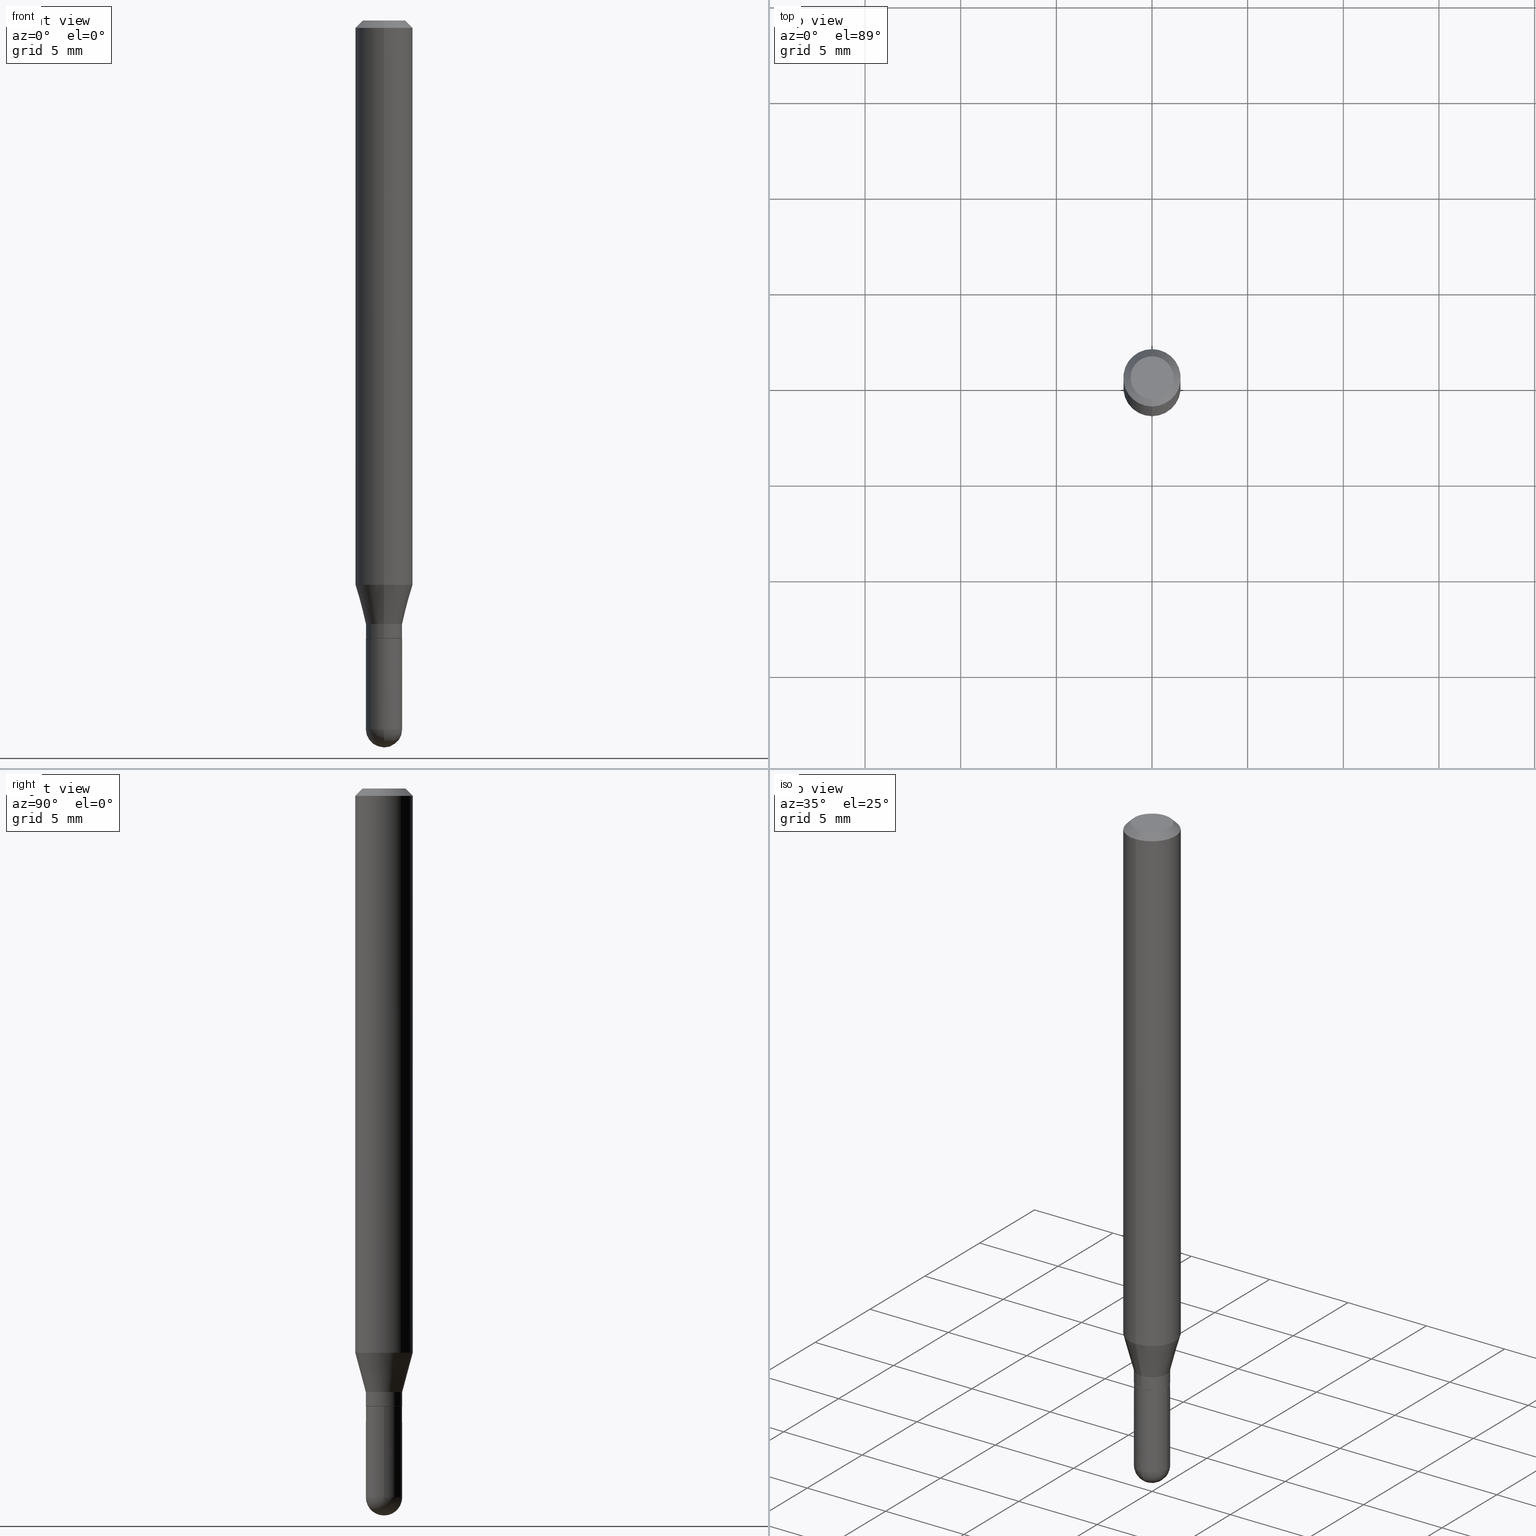
[diagram: canonical four-view strip — front | top / right | iso, engineering-drawing reading convention]
A machine part, canonical four-view strip (front | top / right | iso — engineering-drawing reading convention). The complete STEP part file that produces these views, byte-faithful:
ISO-10303-21;
HEADER;
FILE_DESCRIPTION (( 'STEP AP203' ),
    '1' );
FILE_NAME ('02968.STEP',
    '2024-03-07T22:10:17',
    ( '' ),
    ( '' ),
    'SwSTEP 2.0',
    'SolidWorks 2023',
    '' );
FILE_SCHEMA (( 'CONFIG_CONTROL_DESIGN' ));
ENDSEC;

DATA;
#1 = EDGE_CURVE ( 'NONE', #390, #394, #213, .T. ) ;
#2 = DIRECTION ( 'NONE',  ( -2.445484334717468907E-29, 3.491459101101016620E-15, 1.000000000000000000 ) ) ;
#3 = AXIS2_PLACEMENT_3D ( 'NONE', #228, #262, #376 ) ;
#4 = CIRCLE ( 'NONE', #434, 0.03739999999999999575 ) ;
#5 = EDGE_LOOP ( 'NONE', ( #170, #238, #208, #399 ) ) ;
#6 = CARTESIAN_POINT ( 'NONE',  ( 3.109922428460205583E-29, -4.440088538870162843E-15, -1.271700000000000053 ) ) ;
#7 = ORIENTED_EDGE ( 'NONE', *, *, #264, .F. ) ;
#8 = DIRECTION ( 'NONE',  ( 2.445484334717468627E-29, -3.491459101101016620E-15, -1.000000000000000000 ) ) ;
#9 = CARTESIAN_POINT ( 'NONE',  ( 3.564007025660728008E-29, -5.097604007999306661E-15, -1.458699999999999886 ) ) ;
#10 = DIRECTION ( 'NONE',  ( -6.982962677686265922E-15, -1.000000000000000000, 3.505890868245046092E-15 ) ) ;
#11 = CIRCLE ( 'NONE', #117, 0.03739999999999992636 ) ;
#12 = CARTESIAN_POINT ( 'NONE',  ( 2.839943647979619308E-29, -4.054635294769952393E-15, -1.161301100016133736 ) ) ;
#13 = EDGE_CURVE ( 'NONE', #234, #160, #421, .T. ) ;
#14 = DIRECTION ( 'NONE',  ( 1.000000000000000000, -6.982962677686276177E-15, 0.000000000000000000 ) ) ;
#15 = DIRECTION ( 'NONE',  ( 2.445484334717468907E-29, -3.491459101101016620E-15, -1.000000000000000000 ) ) ;
#16 = CARTESIAN_POINT ( 'NONE',  ( -0.03739999999999999575, 2.657429831742774393E-16, -1.839681723755334690E-30 ) ) ;
#17 = EDGE_CURVE ( 'NONE', #462, #472, #261, .T. ) ;
#18 = CARTESIAN_POINT ( 'NONE',  ( 3.668226502076225554E-31, -5.237188651651557249E-17, -0.01500000000000009139 ) ) ;
#19 = DIRECTION ( 'NONE',  ( -2.445468806185136597E-29, 3.491481338843145583E-15, 1.000000000000000000 ) ) ;
#20 = EDGE_CURVE ( 'NONE', #91, #472, #354, .T. ) ;
#21 = DIRECTION ( 'NONE',  ( -2.445484334717468627E-29, 3.491459101101016620E-15, 1.000000000000000000 ) ) ;
#22 = CONICAL_SURFACE ( 'NONE', #149, 0.03739999999999992636, 0.2617993877991502405 ) ;
#23 = CARTESIAN_POINT ( 'NONE',  ( 3.426592343203375307E-16, 0.03739999999999558955, -1.242099999999999760 ) ) ;
#24 = COORDINATED_UNIVERSAL_TIME_OFFSET ( 5, 0, .BEHIND. ) ;
#25 = ADVANCED_FACE ( 'NONE', ( #438 ), #335, .T. ) ;
#26 = DIRECTION ( 'NONE',  ( -1.000000000000000000, 6.982962677686265922E-15, -4.883557194083112340E-29 ) ) ;
#27 = ORIENTED_EDGE ( 'NONE', *, *, #304, .F. ) ;
#28 = DESIGN_CONTEXT ( 'detailed design', #395, 'design' ) ;
#29 = CYLINDRICAL_SURFACE ( 'NONE', #474, 0.03739999999999992636 ) ;
#30 = ORIENTED_EDGE ( 'NONE', *, *, #505, .T. ) ;
#31 = PERSON_AND_ORGANIZATION ( #251, #143 ) ;
#32 = VECTOR ( 'NONE', #2, 39.37007874015748143 ) ;
#33 = DIRECTION ( 'NONE',  ( -2.445468806185136597E-29, 3.491481338843145583E-15, 1.000000000000000000 ) ) ;
#34 = EDGE_LOOP ( 'NONE', ( #44, #241, #163, #467 ) ) ;
#35 = VECTOR ( 'NONE', #363, 39.37007874015748143 ) ;
#36 = SHAPE_DEFINITION_REPRESENTATION ( #282, #468 ) ;
#37 = ORIENTED_EDGE ( 'NONE', *, *, #20, .T. ) ;
#38 =( NAMED_UNIT ( * ) SI_UNIT ( $, .STERADIAN. ) SOLID_ANGLE_UNIT ( ) );
#39 = PRODUCT_DEFINITION ( 'UNKNOWN', '', #206, #28 ) ;
#40 = FACE_OUTER_BOUND ( 'NONE', #88, .T. ) ;
#41 = ORIENTED_EDGE ( 'NONE', *, *, #109, .T. ) ;
#42 = MANIFOLD_SOLID_BREP ( 'Body-Move/Copy2[2]', #92 ) ;
#43 = DIRECTION ( 'NONE',  ( -6.982962677686265133E-15, -1.000000000000000000, 0.000000000000000000 ) ) ;
#44 = ORIENTED_EDGE ( 'NONE', *, *, #173, .F. ) ;
#45 = AXIS2_PLACEMENT_3D ( 'NONE', #229, #19, #108 ) ;
#46 = EDGE_CURVE ( 'NONE', #339, #462, #378, .T. ) ;
#47 = AXIS2_PLACEMENT_3D ( 'NONE', #327, #141, #331 ) ;
#48 = FACE_OUTER_BOUND ( 'NONE', #347, .T. ) ;
#49 = ORIENTED_EDGE ( 'NONE', *, *, #58, .T. ) ;
#50 = DIRECTION ( 'NONE',  ( -2.445484334717468907E-29, 3.491459101101016620E-15, 1.000000000000000000 ) ) ;
#51 = DIRECTION ( 'NONE',  ( 7.105427357601001859E-15, 1.000000000000000000, 0.000000000000000000 ) ) ;
#52 = ORIENTED_EDGE ( 'NONE', *, *, #220, .F. ) ;
#53 = LOCAL_TIME ( 17, 10, 17.00000000000000000, #239 ) ;
#54 = CARTESIAN_POINT ( 'NONE',  ( -2.611628041454307043E-16, -0.03740000000000509583, -1.458699999999999886 ) ) ;
#55 = DIRECTION ( 'NONE',  ( -2.445484334717468907E-29, 3.491459101101016620E-15, 1.000000000000000000 ) ) ;
#56 = CONICAL_SURFACE ( 'NONE', #340, 0.05904999999999999832, 0.7853981633974483900 ) ;
#57 = CARTESIAN_POINT ( 'NONE',  ( 2.241672595606278768E-45, -3.200473654443799496E-31, -9.166579248872037308E-17 ) ) ;
#58 = EDGE_CURVE ( 'NONE', #274, #344, #348, .T. ) ;
#59 = CIRCLE ( 'NONE', #448, 0.05904999999999999832 ) ;
#60 = LINE ( 'NONE', #361, #368 ) ;
#61 = CC_DESIGN_PERSON_AND_ORGANIZATION_ASSIGNMENT ( #31, #430, ( #320 ) ) ;
#62 = FACE_OUTER_BOUND ( 'NONE', #246, .T. ) ;
#63 = FACE_OUTER_BOUND ( 'NONE', #256, .T. ) ;
#64 = AXIS2_PLACEMENT_3D ( 'NONE', #401, #55, #357 ) ;
#65 = FACE_OUTER_BOUND ( 'NONE', #34, .T. ) ;
#66 = AXIS2_PLACEMENT_3D ( 'NONE', #407, #260, #150 ) ;
#67 = AXIS2_PLACEMENT_3D ( 'NONE', #57, #50, #218 ) ;
#68 = DIRECTION ( 'NONE',  ( 6.982962677686265922E-15, 1.000000000000000000, -3.505890868245046092E-15 ) ) ;
#69 = CARTESIAN_POINT ( 'NONE',  ( 3.037536092152567854E-29, -4.336741349477572225E-15, -1.242099999999999760 ) ) ;
#70 = EDGE_CURVE ( 'NONE', #394, #510, #138, .T. ) ;
#71 = AXIS2_PLACEMENT_3D ( 'NONE', #316, #133, #285 ) ;
#72 = FACE_OUTER_BOUND ( 'NONE', #122, .T. ) ;
#73 = EDGE_CURVE ( 'NONE', #175, #281, #187, .T. ) ;
#74 = AXIS2_PLACEMENT_3D ( 'NONE', #382, #33, #203 ) ;
#75 = CARTESIAN_POINT ( 'NONE',  ( -3.536586717851222218E-16, -0.04404999999999999888, 6.213298091477938012E-17 ) ) ;
#76 = ORIENTED_EDGE ( 'NONE', *, *, #151, .F. ) ;
#77 = CYLINDRICAL_SURFACE ( 'NONE', #280, 0.03739999999999992636 ) ;
#78 = CARTESIAN_POINT ( 'NONE',  ( 2.621902694955080459E-16, 0.03689999999999556135, -1.271700000000000053 ) ) ;
#79 = ORIENTED_EDGE ( 'NONE', *, *, #351, .F. ) ;
#80 = PERSON_AND_ORGANIZATION ( #251, #143 ) ;
#81 = APPROVAL_STATUS ( 'not_yet_approved' ) ;
#82 = CARTESIAN_POINT ( 'NONE',  ( 0.000000000000000000, 0.000000000000000000, 0.000000000000000000 ) ) ;
#83 = ORIENTED_EDGE ( 'NONE', *, *, #13, .F. ) ;
#84 = PERSON_AND_ORGANIZATION ( #251, #143 ) ;
#85 = EDGE_LOOP ( 'NONE', ( #420, #224, #204, #27, #242 ) ) ;
#86 = APPROVAL_DATE_TIME ( #307, #391 ) ;
#87 = CARTESIAN_POINT ( 'NONE',  ( 3.109922428460205583E-29, -4.440088538870162843E-15, -1.271700000000000053 ) ) ;
#88 = EDGE_LOOP ( 'NONE', ( #362, #397, #369, #476 ) ) ;
#89 = APPLICATION_PROTOCOL_DEFINITION ( 'international standard', 'config_control_design', 1994, #439 ) ;
#90 = CARTESIAN_POINT ( 'NONE',  ( 2.657429831742768970E-16, 0.03739999999999992636, -1.305805703811777518E-16 ) ) ;
#91 = VERTEX_POINT ( 'NONE', #450 ) ;
#92 = CLOSED_SHELL ( 'NONE', ( #411, #263, #110, #244, #300, #319, #485, #157, #460, #205, #336, #250 ) ) ;
#93 = CARTESIAN_POINT ( 'NONE',  ( 0.000000000000000000, 0.000000000000000000, 0.000000000000000000 ) ) ;
#94 = DIRECTION ( 'NONE',  ( -2.445468806185136877E-29, 3.491481338843145188E-15, 1.000000000000000000 ) ) ;
#95 = DIRECTION ( 'NONE',  ( -2.445484334717468907E-29, 3.491459101101016620E-15, 1.000000000000000000 ) ) ;
#96 = CONICAL_SURFACE ( 'NONE', #132, 0.03690000000000000224, 0.7853981633974739252 ) ;
#97 = LINE ( 'NONE', #291, #35 ) ;
#98 = DIRECTION ( 'NONE',  ( -2.445484334717468907E-29, 3.491459101101016620E-15, 1.000000000000000000 ) ) ;
#99 = APPROVAL_PERSON_ORGANIZATION ( #84, #477, #393 ) ;
#100 = LINE ( 'NONE', #253, #297 ) ;
#101 = FACE_OUTER_BOUND ( 'NONE', #247, .T. ) ;
#102 = AXIS2_PLACEMENT_3D ( 'NONE', #481, #95, #10 ) ;
#103 = EDGE_LOOP ( 'NONE', ( #128, #383, #386, #479 ) ) ;
#104 = LENGTH_MEASURE_WITH_UNIT ( LENGTH_MEASURE( 0.02539999999999999897 ), #146 );
#105 = CARTESIAN_POINT ( 'NONE',  ( 3.668226502076225554E-31, -5.237188651651557249E-17, -0.01500000000000009139 ) ) ;
#106 = ADVANCED_FACE ( 'NONE', ( #63 ), #493, .F. ) ;
#107 =( NAMED_UNIT ( * ) PLANE_ANGLE_UNIT ( ) SI_UNIT ( $, .RADIAN. ) );
#108 = DIRECTION ( 'NONE',  ( 1.000000000000000000, -6.982962677686276177E-15, 0.000000000000000000 ) ) ;
#109 = EDGE_CURVE ( 'NONE', #428, #390, #11, .T. ) ;
#110 = ADVANCED_FACE ( 'NONE', ( #296 ), #56, .T. ) ;
#111 = LINE ( 'NONE', #190, #279 ) ;
#112 = EDGE_CURVE ( 'NONE', #160, #175, #492, .T. ) ;
#113 = VECTOR ( 'NONE', #500, 39.37007874015748143 ) ;
#114 = DIRECTION ( 'NONE',  ( -4.851104656540964275E-15, -0.7071067811865500152, -0.7071067811865450192 ) ) ;
#115 = DIRECTION ( 'NONE',  ( -2.445484334717468907E-29, 3.491459101101016620E-15, 1.000000000000000000 ) ) ;
#116 = ORIENTED_EDGE ( 'NONE', *, *, #326, .F. ) ;
#117 = AXIS2_PLACEMENT_3D ( 'NONE', #341, #303, #337 ) ;
#118 = DIRECTION ( 'NONE',  ( -2.445484334717468907E-29, 3.491459101101016620E-15, 1.000000000000000000 ) ) ;
#119 = ORIENTED_EDGE ( 'NONE', *, *, #326, .T. ) ;
#120 = PERSON_AND_ORGANIZATION_ROLE ( 'design_owner' ) ;
#121 = CYLINDRICAL_SURFACE ( 'NONE', #405, 0.05904999999999999832 ) ;
#122 = EDGE_LOOP ( 'NONE', ( #186, #79 ) ) ;
#123 = DATE_AND_TIME ( #202, #53 ) ;
#124 = DIRECTION ( 'NONE',  ( -6.982962677686265133E-15, -1.000000000000000000, 0.000000000000000000 ) ) ;
#125 = ORIENTED_EDGE ( 'NONE', *, *, #70, .F. ) ;
#126 = DATE_AND_TIME ( #345, #276 ) ;
#127 = VECTOR ( 'NONE', #416, 39.37007874015748143 ) ;
#128 = ORIENTED_EDGE ( 'NONE', *, *, #370, .F. ) ;
#129 = AXIS2_PLACEMENT_3D ( 'NONE', #359, #8, #257 ) ;
#130 = CARTESIAN_POINT ( 'NONE',  ( 3.564007025660728008E-29, -5.097604007999306661E-15, -1.458699999999999886 ) ) ;
#131 = ORIENTED_EDGE ( 'NONE', *, *, #1, .F. ) ;
#132 = AXIS2_PLACEMENT_3D ( 'NONE', #87, #118, #124 ) ;
#133 = DIRECTION ( 'NONE',  ( 0.000000000000000000, 0.000000000000000000, 1.000000000000000000 ) ) ;
#134 = FACE_OUTER_BOUND ( 'NONE', #85, .T. ) ;
#135 = DIRECTION ( 'NONE',  ( -6.982962677686265133E-15, -1.000000000000000000, 0.000000000000000000 ) ) ;
#136 = ORIENTED_EDGE ( 'NONE', *, *, #442, .T. ) ;
#137 = DIRECTION ( 'NONE',  ( -2.445468806185136597E-29, 3.491481338843145583E-15, 1.000000000000000000 ) ) ;
#138 = CIRCLE ( 'NONE', #373, 0.03739999999999992636 ) ;
#139 = CALENDAR_DATE ( 2024, 7, 3 ) ;
#140 = DIRECTION ( 'NONE',  ( -2.445484334717468907E-29, 3.491459101101016620E-15, 1.000000000000000000 ) ) ;
#141 = DIRECTION ( 'NONE',  ( -2.445484334717468907E-29, 3.491459101101016620E-15, 1.000000000000000000 ) ) ;
#142 = CARTESIAN_POINT ( 'NONE',  ( 2.657429831743070709E-16, 0.03739999999999536057, -1.271200000000000108 ) ) ;
#143 = ORGANIZATION ( 'UNSPECIFIED', 'UNSPECIFIED', '' ) ;
#144 = DIRECTION ( 'NONE',  ( -6.982962677686265922E-15, -1.000000000000000000, 4.626330217890369336E-15 ) ) ;
#145 = PERSON_AND_ORGANIZATION ( #251, #143 ) ;
#146 =( LENGTH_UNIT ( ) NAMED_UNIT ( * ) SI_UNIT ( $, .METRE. ) );
#147 = CARTESIAN_POINT ( 'NONE',  ( 4.195754854663390985E-16, 0.05904999999999999832, -2.061706599200150360E-16 ) ) ;
#148 = EDGE_CURVE ( 'NONE', #510, #394, #302, .T. ) ;
#149 = AXIS2_PLACEMENT_3D ( 'NONE', #437, #365, #475 ) ;
#150 = DIRECTION ( 'NONE',  ( 1.000000000000000000, -6.982962677686266711E-15, 4.876176775795936353E-29 ) ) ;
#151 = EDGE_CURVE ( 'NONE', #472, #462, #433, .T. ) ;
#152 = DIMENSIONAL_EXPONENTS ( 1.000000000000000000, 0.000000000000000000, 0.000000000000000000, 0.000000000000000000, 0.000000000000000000, 0.000000000000000000, 0.000000000000000000 ) ;
#153 = CARTESIAN_POINT ( 'NONE',  ( 2.657429831743130367E-16, 0.03739999999999490260, -1.458699999999999886 ) ) ;
#154 = DIRECTION ( 'NONE',  ( -6.982962677686265133E-15, -1.000000000000000000, 3.491459101101016226E-15 ) ) ;
#155 = CIRCLE ( 'NONE', #217, 0.03740000000000000269 ) ;
#156 = ORIENTED_EDGE ( 'NONE', *, *, #286, .T. ) ;
#157 = ADVANCED_FACE ( 'NONE', ( #65 ), #322, .T. ) ;
#158 = SPHERICAL_SURFACE ( 'NONE', #3, 0.03739999999999999575 ) ;
#159 = CARTESIAN_POINT ( 'NONE',  ( 3.567205347582258439E-29, -5.093023828970496460E-15, -1.458699999999999886 ) ) ;
#160 = VERTEX_POINT ( 'NONE', #153 ) ;
#161 = CC_DESIGN_PERSON_AND_ORGANIZATION_ASSIGNMENT ( #162, #423, ( #206 ) ) ;
#162 = PERSON_AND_ORGANIZATION ( #251, #143 ) ;
#163 = ORIENTED_EDGE ( 'NONE', *, *, #482, .T. ) ;
#164 = FACE_OUTER_BOUND ( 'NONE', #5, .T. ) ;
#165 = EDGE_LOOP ( 'NONE', ( #116, #471, #290, #172 ) ) ;
#166 = EDGE_CURVE ( 'NONE', #236, #281, #155, .T. ) ;
#167 = ORIENTED_EDGE ( 'NONE', *, *, #46, .T. ) ;
#168 = APPROVAL_DATE_TIME ( #126, #477 ) ;
#169 = ADVANCED_FACE ( 'NONE', ( #452 ), #158, .T. ) ;
#170 = ORIENTED_EDGE ( 'NONE', *, *, #148, .T. ) ;
#171 = VECTOR ( 'NONE', #412, 39.37007874015748143 ) ;
#172 = ORIENTED_EDGE ( 'NONE', *, *, #112, .F. ) ;
#173 = EDGE_CURVE ( 'NONE', #274, #472, #111, .T. ) ;
#174 = CONICAL_SURFACE ( 'NONE', #366, 0.03690000000000000224, 0.7853981633974739252 ) ;
#175 = VERTEX_POINT ( 'NONE', #192 ) ;
#176 = CARTESIAN_POINT ( 'NONE',  ( 3.653868398051286742E-29, -5.230475499586446539E-15, -1.496099999999999985 ) ) ;
#177 = DIRECTION ( 'NONE',  ( -2.445484334717468907E-29, 3.491459101101016620E-15, 1.000000000000000000 ) ) ;
#178 = CC_DESIGN_APPROVAL ( #477, ( #320 ) ) ;
#179 = CARTESIAN_POINT ( 'NONE',  ( 2.639666263349080021E-16, 0.03689999999999556135, -1.271700000000000053 ) ) ;
#180 = AXIS2_PLACEMENT_3D ( 'NONE', #315, #137, #321 ) ;
#181 = DIRECTION ( 'NONE',  ( -2.445484334717468907E-29, 3.491459101101016620E-15, 1.000000000000000000 ) ) ;
#182 = PRODUCT_RELATED_PRODUCT_CATEGORY ( 'detail', '', ( #417 ) ) ;
#183 = CARTESIAN_POINT ( 'NONE',  ( 3.599717260347271507E-16, 0.04404999999999999888, -2.454645658922201386E-16 ) ) ;
#184 = DIRECTION ( 'NONE',  ( -6.982962677686265133E-15, -1.000000000000000000, 3.491459101101016226E-15 ) ) ;
#185 = DIRECTION ( 'NONE',  ( -2.445484334717468907E-29, 3.491459101101016620E-15, 1.000000000000000000 ) ) ;
#186 = ORIENTED_EDGE ( 'NONE', *, *, #496, .F. ) ;
#187 = LINE ( 'NONE', #16, #171 ) ;
#188 = CIRCLE ( 'NONE', #381, 0.03739999999999999575 ) ;
#189 = DIRECTION ( 'NONE',  ( -2.445484334717468907E-29, 3.491459101101016620E-15, 1.000000000000000000 ) ) ;
#190 = CARTESIAN_POINT ( 'NONE',  ( -4.051124067684085231E-16, -0.05905000000000005383, -0.01499999999999988495 ) ) ;
#191 = CIRCLE ( 'NONE', #413, 0.05904999999999999832 ) ;
#192 = CARTESIAN_POINT ( 'NONE',  ( -0.03739999999999999575, -4.500827340614384492E-15, -1.458699999999999886 ) ) ;
#193 = CC_DESIGN_PERSON_AND_ORGANIZATION_ASSIGNMENT ( #463, #120, ( #417 ) ) ;
#194 = FACE_OUTER_BOUND ( 'NONE', #249, .T. ) ;
#195 = ORIENTED_EDGE ( 'NONE', *, *, #465, .T. ) ;
#196 = CARTESIAN_POINT ( 'NONE',  ( 0.000000000000000000, 0.000000000000000000, 0.000000000000000000 ) ) ;
#197 = ORIENTED_EDGE ( 'NONE', *, *, #432, .T. ) ;
#198 = DATE_AND_TIME ( #271, #360 ) ;
#199 = LINE ( 'NONE', #78, #113 ) ;
#200 = EDGE_LOOP ( 'NONE', ( #277, #49 ) ) ;
#201 = EDGE_CURVE ( 'NONE', #510, #91, #414, .T. ) ;
#202 = CALENDAR_DATE ( 2024, 7, 3 ) ;
#203 = DIRECTION ( 'NONE',  ( 1.000000000000000000, -6.982962677686266711E-15, 4.876176775795936353E-29 ) ) ;
#204 = ORIENTED_EDGE ( 'NONE', *, *, #166, .F. ) ;
#205 = ADVANCED_FACE ( 'NONE', ( #72 ), #230, .F. ) ;
#206 = PRODUCT_DEFINITION_FORMATION_WITH_SPECIFIED_SOURCE ( 'ANY', '', #417, .NOT_KNOWN. ) ;
#207 = DIRECTION ( 'NONE',  ( -2.445484334717468907E-29, 3.491459101101016620E-15, 1.000000000000000000 ) ) ;
#208 = ORIENTED_EDGE ( 'NONE', *, *, #432, .F. ) ;
#209 = ORIENTED_EDGE ( 'NONE', *, *, #151, .T. ) ;
#210 = CARTESIAN_POINT ( 'NONE',  ( 2.657429831743073174E-16, 0.03739999999999558955, -1.242099999999999760 ) ) ;
#211 = ORIENTED_EDGE ( 'NONE', *, *, #387, .T. ) ;
#212 = DIRECTION ( 'NONE',  ( -6.982962677686265922E-15, -1.000000000000000000, 0.000000000000000000 ) ) ;
#213 = LINE ( 'NONE', #90, #453 ) ;
#214 = CARTESIAN_POINT ( 'NONE',  ( -2.611628041454356346E-16, -0.03740000000000449215, -1.271200000000000108 ) ) ;
#215 = ADVANCED_FACE ( 'NONE', ( #134 ), #233, .T. ) ;
#216 = FACE_OUTER_BOUND ( 'NONE', #103, .T. ) ;
#217 = AXIS2_PLACEMENT_3D ( 'NONE', #305, #455, #301 ) ;
#218 = DIRECTION ( 'NONE',  ( -6.982962677686265133E-15, -1.000000000000000000, 3.491459101101016226E-15 ) ) ;
#219 = AXIS2_PLACEMENT_3D ( 'NONE', #317, #98, #135 ) ;
#220 = EDGE_CURVE ( 'NONE', #310, #501, #473, .T. ) ;
#221 = AXIS2_PLACEMENT_3D ( 'NONE', #272, #424, #466 ) ;
#222 = DIRECTION ( 'NONE',  ( -2.445468806185136597E-29, 3.491481338843145583E-15, 1.000000000000000000 ) ) ;
#223 = APPROVAL_DATE_TIME ( #404, #418 ) ;
#224 = ORIENTED_EDGE ( 'NONE', *, *, #73, .T. ) ;
#225 = CARTESIAN_POINT ( 'NONE',  ( 2.241672595606278768E-45, -3.200473654443799496E-31, -9.166579248872037308E-17 ) ) ;
#226 = DIRECTION ( 'NONE',  ( 2.445484334717468907E-29, -3.491459101101016620E-15, -1.000000000000000000 ) ) ;
#227 = AXIS2_PLACEMENT_3D ( 'NONE', #483, #292, #444 ) ;
#228 = CARTESIAN_POINT ( 'NONE',  ( 3.564007025660728008E-29, -5.097604007999306661E-15, -1.458699999999999886 ) ) ;
#229 = CARTESIAN_POINT ( 'NONE',  ( 3.567205347582258439E-29, -5.093023828970496460E-15, -1.458699999999999886 ) ) ;
#230 = PLANE ( 'NONE',  #332 ) ;
#231 = AXIS2_PLACEMENT_3D ( 'NONE', #18, #499, #454 ) ;
#232 = CIRCLE ( 'NONE', #219, 0.03690000000000000224 ) ;
#233 = CYLINDRICAL_SURFACE ( 'NONE', #74, 0.03739999999999999575 ) ;
#234 = VERTEX_POINT ( 'NONE', #396 ) ;
#235 = DIRECTION ( 'NONE',  ( -2.445468806185136597E-29, 3.491481338843145583E-15, 1.000000000000000000 ) ) ;
#236 = VERTEX_POINT ( 'NONE', #308 ) ;
#237 = DIRECTION ( 'NONE',  ( -6.982962677686265922E-15, -1.000000000000000000, 3.491459101101016620E-15 ) ) ;
#238 = ORIENTED_EDGE ( 'NONE', *, *, #370, .T. ) ;
#239 = COORDINATED_UNIVERSAL_TIME_OFFSET ( 5, 0, .BEHIND. ) ;
#240 = AXIS2_PLACEMENT_3D ( 'NONE', #225, #115, #154 ) ;
#241 = ORIENTED_EDGE ( 'NONE', *, *, #426, .F. ) ;
#242 = ORIENTED_EDGE ( 'NONE', *, *, #13, .T. ) ;
#243 = MECHANICAL_CONTEXT ( 'NONE', #439, 'mechanical' ) ;
#244 = ADVANCED_FACE ( 'NONE', ( #313 ), #121, .T. ) ;
#245 = DIRECTION ( 'NONE',  ( 1.000000000000000000, -7.105427357601001070E-15, 4.926315508542082329E-29 ) ) ;
#246 = EDGE_LOOP ( 'NONE', ( #352, #30, #37, #283 ) ) ;
#247 = EDGE_LOOP ( 'NONE', ( #7, #436, #195, #458 ) ) ;
#248 = CARTESIAN_POINT ( 'NONE',  ( 4.195754854663672017E-16, 0.05904999999999591132, -1.161301100016133736 ) ) ;
#249 = EDGE_LOOP ( 'NONE', ( #41, #425, #440, #273 ) ) ;
#250 = ADVANCED_FACE ( 'NONE', ( #389 ), #29, .T. ) ;
#251 = PERSON ( 'UNSPECIFIED', 'UNSPECIFIED', 'UNSPECIFIED', ('UNSPECIFIED'), ('UNSPECIFIED'), ('UNSPECIFIED') ) ;
#252 = APPROVAL_ROLE ( '' ) ;
#253 = CARTESIAN_POINT ( 'NONE',  ( -2.611628041454658086E-16, -0.03739999999999992636, 1.305805703811777518E-16 ) ) ;
#254 = CARTESIAN_POINT ( 'NONE',  ( 4.195754854663675961E-16, 0.05904999999999994281, -0.01500000000000029955 ) ) ;
#255 = COORDINATED_UNIVERSAL_TIME_OFFSET ( 5, 0, .BEHIND. ) ;
#256 = EDGE_LOOP ( 'NONE', ( #507, #211 ) ) ;
#257 = DIRECTION ( 'NONE',  ( 6.982962677686265922E-15, 1.000000000000000000, -3.491459101101016620E-15 ) ) ;
#258 = CARTESIAN_POINT ( 'NONE',  ( 3.037536092152567854E-29, -4.336741349477572225E-15, -1.242099999999999760 ) ) ;
#259 = CIRCLE ( 'NONE', #511, 0.03739999999999999575 ) ;
#260 = DIRECTION ( 'NONE',  ( -2.445468806185136597E-29, 3.491481338843145583E-15, 1.000000000000000000 ) ) ;
#261 = CIRCLE ( 'NONE', #102, 0.05904999999999999832 ) ;
#262 = DIRECTION ( 'NONE',  ( 1.000000000000000000, -6.982962677686265922E-15, 4.883557194083112901E-29 ) ) ;
#263 = ADVANCED_FACE ( 'NONE', ( #40 ), #96, .T. ) ;
#264 = EDGE_CURVE ( 'NONE', #353, #390, #199, .T. ) ;
#265 = DIRECTION ( 'NONE',  ( -2.445484334717468907E-29, 3.491459101101016620E-15, 1.000000000000000000 ) ) ;
#266 = CARTESIAN_POINT ( 'NONE',  ( -2.611628041454354374E-16, -0.03740000000000426317, -1.242099999999999760 ) ) ;
#267 = APPROVAL_ROLE ( '' ) ;
#268 = CARTESIAN_POINT ( 'NONE',  ( -2.576713228065921345E-16, -0.03690000000000443620, -1.271700000000000053 ) ) ;
#269 = VERTEX_POINT ( 'NONE', #268 ) ;
#270 = CLOSED_SHELL ( 'NONE', ( #215, #343, #106, #169, #25 ) ) ;
#271 = CALENDAR_DATE ( 2024, 7, 3 ) ;
#272 = CARTESIAN_POINT ( 'NONE',  ( 3.108699686292845895E-29, -4.438342809319612736E-15, -1.271200000000000108 ) ) ;
#273 = ORIENTED_EDGE ( 'NONE', *, *, #442, .F. ) ;
#274 = VERTEX_POINT ( 'NONE', #75 ) ;
#275 = CALENDAR_DATE ( 2024, 7, 3 ) ;
#276 = LOCAL_TIME ( 17, 10, 17.00000000000000000, #349 ) ;
#277 = ORIENTED_EDGE ( 'NONE', *, *, #426, .T. ) ;
#278 = SECURITY_CLASSIFICATION_LEVEL ( 'unclassified' ) ;
#279 = VECTOR ( 'NONE', #114, 39.37007874015748143 ) ;
#280 = AXIS2_PLACEMENT_3D ( 'NONE', #93, #140, #184 ) ;
#281 = VERTEX_POINT ( 'NONE', #461 ) ;
#282 = PRODUCT_DEFINITION_SHAPE ( 'NONE', 'NONE',  #39 ) ;
#283 = ORIENTED_EDGE ( 'NONE', *, *, #17, .F. ) ;
#284 = CIRCLE ( 'NONE', #221, 0.03739999999999992636 ) ;
#285 = DIRECTION ( 'NONE',  ( 1.000000000000000000, 0.000000000000000000, 0.000000000000000000 ) ) ;
#286 = EDGE_CURVE ( 'NONE', #390, #428, #284, .T. ) ;
#287 = ORIENTED_EDGE ( 'NONE', *, *, #294, .F. ) ;
#288 = PERSON_AND_ORGANIZATION_ROLE ( 'creator' ) ;
#289 = VECTOR ( 'NONE', #375, 39.37007874015748143 ) ;
#290 = ORIENTED_EDGE ( 'NONE', *, *, #392, .F. ) ;
#291 = CARTESIAN_POINT ( 'NONE',  ( 4.123439461173743285E-16, 0.05904999999999994975, -0.01500000000000029955 ) ) ;
#292 = DIRECTION ( 'NONE',  ( -2.445468806185136597E-29, 3.491481338843145583E-15, 1.000000000000000000 ) ) ;
#293 = DIRECTION ( 'NONE',  ( -2.445484334717468907E-29, 3.491459101101016620E-15, 1.000000000000000000 ) ) ;
#294 = EDGE_CURVE ( 'NONE', #501, #234, #259, .T. ) ;
#295 = CARTESIAN_POINT ( 'NONE',  ( -2.611628041454354374E-16, -0.03740000000000426317, -1.242099999999999760 ) ) ;
#296 = FACE_OUTER_BOUND ( 'NONE', #318, .T. ) ;
#297 = VECTOR ( 'NONE', #185, 39.37007874015748143 ) ;
#298 = CIRCLE ( 'NONE', #495, 0.03690000000000000224 ) ;
#299 = DIRECTION ( 'NONE',  ( -1.000000000000000000, 6.982962677686265922E-15, -4.876176775795935793E-29 ) ) ;
#300 = ADVANCED_FACE ( 'NONE', ( #164 ), #329, .T. ) ;
#301 = DIRECTION ( 'NONE',  ( 1.000000000000000000, -6.982962677686274599E-15, 0.000000000000000000 ) ) ;
#302 = CIRCLE ( 'NONE', #447, 0.03739999999999992636 ) ;
#303 = DIRECTION ( 'NONE',  ( -2.445484334717468907E-29, 3.491459101101016620E-15, 1.000000000000000000 ) ) ;
#304 = EDGE_CURVE ( 'NONE', #234, #236, #60, .T. ) ;
#305 = CARTESIAN_POINT ( 'NONE',  ( 3.109902680825638129E-29, -4.440116818606828093E-15, -1.271700000000000053 ) ) ;
#306 = EDGE_LOOP ( 'NONE', ( #197, #167, #76, #312 ) ) ;
#307 = DATE_AND_TIME ( #275, #429 ) ;
#308 = CARTESIAN_POINT ( 'NONE',  ( 0.03740000000000000269, -4.701279622752295282E-15, -1.271700000000000053 ) ) ;
#309 = ORIENTED_EDGE ( 'NONE', *, *, #392, .T. ) ;
#310 = VERTEX_POINT ( 'NONE', #176 ) ;
#311 = DIRECTION ( 'NONE',  ( -6.982962677686265922E-15, -1.000000000000000000, 0.000000000000000000 ) ) ;
#312 = ORIENTED_EDGE ( 'NONE', *, *, #20, .F. ) ;
#313 = FACE_OUTER_BOUND ( 'NONE', #306, .T. ) ;
#314 = EDGE_LOOP ( 'NONE', ( #131, #156, #136, #125 ) ) ;
#315 = CARTESIAN_POINT ( 'NONE',  ( 3.567205347582258439E-29, -5.093023828970496460E-15, -1.458699999999999886 ) ) ;
#316 = CARTESIAN_POINT ( 'NONE',  ( 0.000000000000000000, 0.000000000000000000, 0.000000000000000000 ) ) ;
#317 = CARTESIAN_POINT ( 'NONE',  ( 3.109922428460205583E-29, -4.440088538870162843E-15, -1.271700000000000053 ) ) ;
#318 = EDGE_LOOP ( 'NONE', ( #358, #502, #209, #441 ) ) ;
#319 = ADVANCED_FACE ( 'NONE', ( #216 ), #22, .T. ) ;
#320 = SECURITY_CLASSIFICATION ( '', '', #278 ) ;
#321 = DIRECTION ( 'NONE',  ( 1.000000000000000000, -6.982962677686276177E-15, 0.000000000000000000 ) ) ;
#322 = CONICAL_SURFACE ( 'NONE', #364, 0.05904999999999999832, 0.7853981633974483900 ) ;
#323 = DIRECTION ( 'NONE',  ( 1.839019923739599921E-15, 0.2588190451025249028, 0.9659258262890670910 ) ) ;
#324 = PLANE ( 'NONE',  #129 ) ;
#325 = DIRECTION ( 'NONE',  ( 1.000000000000000000, -6.982962677686265922E-15, 4.883557194083112901E-29 ) ) ;
#326 = EDGE_CURVE ( 'NONE', #310, #160, #4, .T. ) ;
#327 = CARTESIAN_POINT ( 'NONE',  ( 0.000000000000000000, 0.000000000000000000, 0.000000000000000000 ) ) ;
#329 = CONICAL_SURFACE ( 'NONE', #64, 0.03739999999999992636, 0.2617993877991502405 ) ;
#328 = CC_DESIGN_PERSON_AND_ORGANIZATION_ASSIGNMENT ( #419, #384, ( #206 ) ) ;
#330 = CC_DESIGN_APPROVAL ( #418, ( #39 ) ) ;
#331 = DIRECTION ( 'NONE',  ( -6.982962677686265922E-15, -1.000000000000000000, 3.491459101101016620E-15 ) ) ;
#332 = AXIS2_PLACEMENT_3D ( 'NONE', #380, #21, #491 ) ;
#333 = ORIENTED_EDGE ( 'NONE', *, *, #294, .T. ) ;
#334 = DIRECTION ( 'NONE',  ( -6.982962677686265922E-15, -1.000000000000000000, 4.626330217890369336E-15 ) ) ;
#335 = CYLINDRICAL_SURFACE ( 'NONE', #66, 0.03739999999999999575 ) ;
#336 = ADVANCED_FACE ( 'NONE', ( #101 ), #174, .T. ) ;
#337 = DIRECTION ( 'NONE',  ( -6.982962677686265133E-15, -1.000000000000000000, 0.000000000000000000 ) ) ;
#338 = CARTESIAN_POINT ( 'NONE',  ( 3.668226502076225554E-31, -5.237188651651557249E-17, -0.01500000000000009139 ) ) ;
#339 = VERTEX_POINT ( 'NONE', #248 ) ;
#340 = AXIS2_PLACEMENT_3D ( 'NONE', #105, #15, #68 ) ;
#341 = CARTESIAN_POINT ( 'NONE',  ( 3.108699686292845895E-29, -4.438342809319612736E-15, -1.271200000000000108 ) ) ;
#342 = APPROVAL_STATUS ( 'not_yet_approved' ) ;
#343 = ADVANCED_FACE ( 'NONE', ( #48 ), #478, .T. ) ;
#344 = VERTEX_POINT ( 'NONE', #183 ) ;
#345 = CALENDAR_DATE ( 2024, 7, 3 ) ;
#346 = CARTESIAN_POINT ( 'NONE',  ( 3.567205347582258439E-29, -5.093023828970496460E-15, -1.458699999999999886 ) ) ;
#347 = EDGE_LOOP ( 'NONE', ( #52, #119, #83, #287 ) ) ;
#348 = CIRCLE ( 'NONE', #240, 0.04404999999999999888 ) ;
#349 = COORDINATED_UNIVERSAL_TIME_OFFSET ( 5, 0, .BEHIND. ) ;
#350 = VECTOR ( 'NONE', #488, 39.37007874015748143 ) ;
#351 = EDGE_CURVE ( 'NONE', #353, #269, #232, .T. ) ;
#352 = ORIENTED_EDGE ( 'NONE', *, *, #46, .F. ) ;
#353 = VERTEX_POINT ( 'NONE', #179 ) ;
#354 = LINE ( 'NONE', #356, #32 ) ;
#355 = AXIS2_PLACEMENT_3D ( 'NONE', #457, #26, #311 ) ;
#356 = CARTESIAN_POINT ( 'NONE',  ( -4.123439461173739834E-16, -0.05904999999999999832, 2.061706599200150360E-16 ) ) ;
#357 = DIRECTION ( 'NONE',  ( -6.982962677686265133E-15, -1.000000000000000000, 0.000000000000000000 ) ) ;
#358 = ORIENTED_EDGE ( 'NONE', *, *, #58, .F. ) ;
#359 = CARTESIAN_POINT ( 'NONE',  ( 3.075995059520799729E-16, 0.04404999999999999888, -1.996316696478599582E-16 ) ) ;
#360 = LOCAL_TIME ( 17, 10, 17.00000000000000000, #24 ) ;
#361 = CARTESIAN_POINT ( 'NONE',  ( 0.03739999999999999575, -2.611628041454663509E-16, 1.823690114147680082E-30 ) ) ;
#362 = ORIENTED_EDGE ( 'NONE', *, *, #496, .T. ) ;
#363 = DIRECTION ( 'NONE',  ( 4.937700262164548042E-15, 0.7071067811865451302, -0.7071067811865499042 ) ) ;
#364 = AXIS2_PLACEMENT_3D ( 'NONE', #338, #226, #494 ) ;
#365 = DIRECTION ( 'NONE',  ( -2.445484334717468907E-29, 3.491459101101016620E-15, 1.000000000000000000 ) ) ;
#366 = AXIS2_PLACEMENT_3D ( 'NONE', #6, #398, #43 ) ;
#367 = FACE_OUTER_BOUND ( 'NONE', #200, .T. ) ;
#368 = VECTOR ( 'NONE', #94, 39.37007874015748143 ) ;
#369 = ORIENTED_EDGE ( 'NONE', *, *, #109, .F. ) ;
#370 = EDGE_CURVE ( 'NONE', #394, #339, #487, .T. ) ;
#371 = DIRECTION ( 'NONE',  ( -2.445484334717468907E-29, 3.491459101101016620E-15, 1.000000000000000000 ) ) ;
#372 = CARTESIAN_POINT ( 'NONE',  ( 2.611628041454974123E-16, 0.03739999999999556179, -1.271700000000000053 ) ) ;
#373 = AXIS2_PLACEMENT_3D ( 'NONE', #69, #189, #451 ) ;
#374 = CC_DESIGN_DATE_AND_TIME_ASSIGNMENT ( #198, #464, ( #320 ) ) ;
#375 = DIRECTION ( 'NONE',  ( -2.445484334717468907E-29, 3.491459101101016620E-15, 1.000000000000000000 ) ) ;
#376 = DIRECTION ( 'NONE',  ( -6.982962677686265922E-15, -1.000000000000000000, 0.000000000000000000 ) ) ;
#377 = APPROVAL_PERSON_ORGANIZATION ( #80, #418, #252 ) ;
#378 = LINE ( 'NONE', #147, #289 ) ;
#379 = MANIFOLD_SOLID_BREP ( 'Body-Move/Copy2[1]', #270 ) ;
#380 = CARTESIAN_POINT ( 'NONE',  ( 3.109922428460205583E-29, -4.440088538870162843E-15, -1.271700000000000053 ) ) ;
#381 = AXIS2_PLACEMENT_3D ( 'NONE', #159, #222, #14 ) ;
#382 = CARTESIAN_POINT ( 'NONE',  ( 0.000000000000000000, 0.000000000000000000, 0.000000000000000000 ) ) ;
#383 = ORIENTED_EDGE ( 'NONE', *, *, #70, .T. ) ;
#384 = PERSON_AND_ORGANIZATION_ROLE ( 'design_supplier' ) ;
#385 = DIRECTION ( 'NONE',  ( 1.000000000000000000, -6.982962677686276177E-15, 0.000000000000000000 ) ) ;
#386 = ORIENTED_EDGE ( 'NONE', *, *, #201, .T. ) ;
#387 = EDGE_CURVE ( 'NONE', #281, #236, #422, .T. ) ;
#388 = UNCERTAINTY_MEASURE_WITH_UNIT (LENGTH_MEASURE( 1.000000000000000082E-05 ), #504, 'distance_accuracy_value', 'NONE');
#389 = FACE_OUTER_BOUND ( 'NONE', #314, .T. ) ;
#390 = VERTEX_POINT ( 'NONE', #142 ) ;
#391 = APPROVAL ( #342, 'UNSPECIFIED' ) ;
#392 = EDGE_CURVE ( 'NONE', #175, #501, #188, .T. ) ;
#393 = APPROVAL_ROLE ( '' ) ;
#394 = VERTEX_POINT ( 'NONE', #23 ) ;
#395 = APPLICATION_CONTEXT ( 'configuration controlled 3d designs of mechanical parts and assemblies' ) ;
#396 = CARTESIAN_POINT ( 'NONE',  ( 0.03739999999999999575, -5.027733127934128282E-15, -1.458699999999999886 ) ) ;
#397 = ORIENTED_EDGE ( 'NONE', *, *, #264, .T. ) ;
#398 = DIRECTION ( 'NONE',  ( -2.445484334717468907E-29, 3.491459101101016620E-15, 1.000000000000000000 ) ) ;
#399 = ORIENTED_EDGE ( 'NONE', *, *, #201, .F. ) ;
#400 = EDGE_LOOP ( 'NONE', ( #512, #309, #333, #402, #431 ) ) ;
#401 = CARTESIAN_POINT ( 'NONE',  ( 3.037536092152567854E-29, -4.336741349477572225E-15, -1.242099999999999760 ) ) ;
#402 = ORIENTED_EDGE ( 'NONE', *, *, #304, .T. ) ;
#403 = DIRECTION ( 'NONE',  ( -6.982962677686265133E-15, -1.000000000000000000, 0.000000000000000000 ) ) ;
#404 = DATE_AND_TIME ( #139, #446 ) ;
#405 = AXIS2_PLACEMENT_3D ( 'NONE', #82, #435, #237 ) ;
#406 = CARTESIAN_POINT ( 'NONE',  ( 3.109922428460205583E-29, -4.440088538870162843E-15, -1.271700000000000053 ) ) ;
#407 = CARTESIAN_POINT ( 'NONE',  ( 0.000000000000000000, 0.000000000000000000, 0.000000000000000000 ) ) ;
#408 = CC_DESIGN_PERSON_AND_ORGANIZATION_ASSIGNMENT ( #145, #288, ( #39 ) ) ;
#409 = DIRECTION ( 'NONE',  ( 2.438088387897960049E-29, -3.491481338843145188E-15, -1.000000000000000000 ) ) ;
#410 = AXIS2_PLACEMENT_3D ( 'NONE', #372, #409, #299 ) ;
#411 = ADVANCED_FACE ( 'NONE', ( #194 ), #77, .T. ) ;
#412 = DIRECTION ( 'NONE',  ( -2.445468806185136877E-29, 3.491481338843145188E-15, 1.000000000000000000 ) ) ;
#413 = AXIS2_PLACEMENT_3D ( 'NONE', #12, #293, #144 ) ;
#414 = LINE ( 'NONE', #266, #127 ) ;
#415 = CC_DESIGN_SECURITY_CLASSIFICATION ( #320, ( #206 ) ) ;
#416 = DIRECTION ( 'NONE',  ( -1.807323732225329745E-15, -0.2588190451025181305, 0.9659258262890689783 ) ) ;
#417 = PRODUCT ( '02968', '02968', '', ( #243 ) ) ;
#418 = APPROVAL ( #469, 'UNSPECIFIED' ) ;
#419 = PERSON_AND_ORGANIZATION ( #251, #143 ) ;
#420 = ORIENTED_EDGE ( 'NONE', *, *, #112, .T. ) ;
#421 = CIRCLE ( 'NONE', #180, 0.03739999999999999575 ) ;
#422 = CIRCLE ( 'NONE', #227, 0.03740000000000000269 ) ;
#423 = PERSON_AND_ORGANIZATION_ROLE ( 'creator' ) ;
#424 = DIRECTION ( 'NONE',  ( -2.445484334717468907E-29, 3.491459101101016620E-15, 1.000000000000000000 ) ) ;
#425 = ORIENTED_EDGE ( 'NONE', *, *, #1, .T. ) ;
#426 = EDGE_CURVE ( 'NONE', #344, #274, #508, .T. ) ;
#427 = APPLICATION_PROTOCOL_DEFINITION ( 'international standard', 'config_control_design', 1994, #395 ) ;
#428 = VERTEX_POINT ( 'NONE', #214 ) ;
#429 = LOCAL_TIME ( 17, 10, 17.00000000000000000, #456 ) ;
#430 = PERSON_AND_ORGANIZATION_ROLE ( 'classification_officer' ) ;
#431 = ORIENTED_EDGE ( 'NONE', *, *, #387, .F. ) ;
#432 = EDGE_CURVE ( 'NONE', #91, #339, #59, .T. ) ;
#433 = CIRCLE ( 'NONE', #231, 0.05904999999999999832 ) ;
#434 = AXIS2_PLACEMENT_3D ( 'NONE', #130, #245, #51 ) ;
#435 = DIRECTION ( 'NONE',  ( -2.445484334717468907E-29, 3.491459101101016620E-15, 1.000000000000000000 ) ) ;
#436 = ORIENTED_EDGE ( 'NONE', *, *, #351, .T. ) ;
#437 = CARTESIAN_POINT ( 'NONE',  ( 3.037536092152567854E-29, -4.336741349477572225E-15, -1.242099999999999760 ) ) ;
#438 = FACE_OUTER_BOUND ( 'NONE', #400, .T. ) ;
#439 = APPLICATION_CONTEXT ( 'configuration controlled 3d designs of mechanical parts and assemblies' ) ;
#440 = ORIENTED_EDGE ( 'NONE', *, *, #148, .F. ) ;
#441 = ORIENTED_EDGE ( 'NONE', *, *, #482, .F. ) ;
#442 = EDGE_CURVE ( 'NONE', #428, #510, #100, .T. ) ;
#443 = CARTESIAN_POINT ( 'NONE',  ( -2.576713228065921345E-16, -0.03690000000000443620, -1.271700000000000053 ) ) ;
#444 = DIRECTION ( 'NONE',  ( 1.000000000000000000, -6.982962677686274599E-15, 0.000000000000000000 ) ) ;
#445 = CARTESIAN_POINT ( 'NONE',  ( 2.839943647979619308E-29, -4.054635294769952393E-15, -1.161301100016133736 ) ) ;
#446 = LOCAL_TIME ( 17, 10, 17.00000000000000000, #255 ) ;
#447 = AXIS2_PLACEMENT_3D ( 'NONE', #258, #265, #497 ) ;
#448 = AXIS2_PLACEMENT_3D ( 'NONE', #445, #371, #334 ) ;
#449 = CARTESIAN_POINT ( 'NONE',  ( -4.123439461173736383E-16, -0.05905000000000005383, -0.01499999999999988495 ) ) ;
#450 = CARTESIAN_POINT ( 'NONE',  ( -4.123439461173457816E-16, -0.05905000000000408533, -1.161301100016133514 ) ) ;
#451 = DIRECTION ( 'NONE',  ( -6.982962677686265133E-15, -1.000000000000000000, 0.000000000000000000 ) ) ;
#452 = FACE_OUTER_BOUND ( 'NONE', #165, .T. ) ;
#453 = VECTOR ( 'NONE', #177, 39.37007874015748143 ) ;
#454 = DIRECTION ( 'NONE',  ( -6.982962677686265922E-15, -1.000000000000000000, 3.505890868245046092E-15 ) ) ;
#455 = DIRECTION ( 'NONE',  ( -2.445468806185136597E-29, 3.491481338843145583E-15, 1.000000000000000000 ) ) ;
#456 = COORDINATED_UNIVERSAL_TIME_OFFSET ( 5, 0, .BEHIND. ) ;
#457 = CARTESIAN_POINT ( 'NONE',  ( 3.564007025660728008E-29, -5.097604007999306661E-15, -1.458699999999999886 ) ) ;
#458 = ORIENTED_EDGE ( 'NONE', *, *, #286, .F. ) ;
#459 = APPROVAL_PERSON_ORGANIZATION ( #470, #391, #267 ) ;
#460 = ADVANCED_FACE ( 'NONE', ( #367 ), #324, .F. ) ;
#461 = CARTESIAN_POINT ( 'NONE',  ( -0.03740000000000000269, -4.500827340614384492E-15, -1.271700000000000053 ) ) ;
#462 = VERTEX_POINT ( 'NONE', #254 ) ;
#463 = PERSON_AND_ORGANIZATION ( #251, #143 ) ;
#464 = DATE_TIME_ROLE ( 'classification_date' ) ;
#465 = EDGE_CURVE ( 'NONE', #269, #428, #486, .T. ) ;
#466 = DIRECTION ( 'NONE',  ( -6.982962677686265133E-15, -1.000000000000000000, 0.000000000000000000 ) ) ;
#467 = ORIENTED_EDGE ( 'NONE', *, *, #17, .T. ) ;
#468 = ADVANCED_BREP_SHAPE_REPRESENTATION ( '02968', ( #379, #42, #71 ), #489 ) ;
#469 = APPROVAL_STATUS ( 'not_yet_approved' ) ;
#470 = PERSON_AND_ORGANIZATION ( #251, #143 ) ;
#471 = ORIENTED_EDGE ( 'NONE', *, *, #220, .T. ) ;
#472 = VERTEX_POINT ( 'NONE', #449 ) ;
#473 = CIRCLE ( 'NONE', #355, 0.03739999999999999575 ) ;
#474 = AXIS2_PLACEMENT_3D ( 'NONE', #196, #207, #506 ) ;
#475 = DIRECTION ( 'NONE',  ( -6.982962677686265133E-15, -1.000000000000000000, 0.000000000000000000 ) ) ;
#476 = ORIENTED_EDGE ( 'NONE', *, *, #465, .F. ) ;
#477 = APPROVAL ( #81, 'UNSPECIFIED' ) ;
#478 = SPHERICAL_SURFACE ( 'NONE', #484, 0.03739999999999999575 ) ;
#479 = ORIENTED_EDGE ( 'NONE', *, *, #505, .F. ) ;
#480 = CC_DESIGN_APPROVAL ( #391, ( #206 ) ) ;
#481 = CARTESIAN_POINT ( 'NONE',  ( 3.668226502076225554E-31, -5.237188651651557249E-17, -0.01500000000000009139 ) ) ;
#482 = EDGE_CURVE ( 'NONE', #344, #462, #97, .T. ) ;
#483 = CARTESIAN_POINT ( 'NONE',  ( 3.109902680825638129E-29, -4.440116818606828093E-15, -1.271700000000000053 ) ) ;
#484 = AXIS2_PLACEMENT_3D ( 'NONE', #9, #325, #212 ) ;
#485 = ADVANCED_FACE ( 'NONE', ( #62 ), #490, .T. ) ;
#486 = LINE ( 'NONE', #443, #350 ) ;
#487 = LINE ( 'NONE', #210, #498 ) ;
#488 = DIRECTION ( 'NONE',  ( -4.937700262164674260E-15, -0.7071067811865632269, 0.7071067811865319186 ) ) ;
#489 =( GEOMETRIC_REPRESENTATION_CONTEXT ( 3 ) GLOBAL_UNCERTAINTY_ASSIGNED_CONTEXT ( ( #388 ) ) GLOBAL_UNIT_ASSIGNED_CONTEXT ( ( #504, #107, #38 ) ) REPRESENTATION_CONTEXT ( 'NONE', 'WORKASPACE' ) );
#490 = CYLINDRICAL_SURFACE ( 'NONE', #47, 0.05904999999999999832 ) ;
#491 = DIRECTION ( 'NONE',  ( -6.982962677686265922E-15, -1.000000000000000000, 3.491459101101016620E-15 ) ) ;
#492 = CIRCLE ( 'NONE', #45, 0.03739999999999999575 ) ;
#493 = PLANE ( 'NONE',  #410 ) ;
#494 = DIRECTION ( 'NONE',  ( 6.982962677686265922E-15, 1.000000000000000000, -3.505890868245046092E-15 ) ) ;
#495 = AXIS2_PLACEMENT_3D ( 'NONE', #406, #181, #403 ) ;
#496 = EDGE_CURVE ( 'NONE', #269, #353, #298, .T. ) ;
#497 = DIRECTION ( 'NONE',  ( -6.982962677686265133E-15, -1.000000000000000000, 0.000000000000000000 ) ) ;
#498 = VECTOR ( 'NONE', #323, 39.37007874015748143 ) ;
#499 = DIRECTION ( 'NONE',  ( -2.445484334717468907E-29, 3.491459101101016620E-15, 1.000000000000000000 ) ) ;
#500 = DIRECTION ( 'NONE',  ( 5.024295867788190974E-15, 0.7071067811865681119, 0.7071067811865270336 ) ) ;
#501 = VERTEX_POINT ( 'NONE', #54 ) ;
#502 = ORIENTED_EDGE ( 'NONE', *, *, #173, .T. ) ;
#504 =( CONVERSION_BASED_UNIT ( 'INCH', #104 ) LENGTH_UNIT ( ) NAMED_UNIT ( #152 ) );
#503 = CC_DESIGN_DATE_AND_TIME_ASSIGNMENT ( #123, #509, ( #39 ) ) ;
#505 = EDGE_CURVE ( 'NONE', #339, #91, #191, .T. ) ;
#506 = DIRECTION ( 'NONE',  ( -6.982962677686265133E-15, -1.000000000000000000, 3.491459101101016226E-15 ) ) ;
#507 = ORIENTED_EDGE ( 'NONE', *, *, #166, .T. ) ;
#508 = CIRCLE ( 'NONE', #67, 0.04404999999999999888 ) ;
#509 = DATE_TIME_ROLE ( 'creation_date' ) ;
#510 = VERTEX_POINT ( 'NONE', #295 ) ;
#511 = AXIS2_PLACEMENT_3D ( 'NONE', #346, #235, #385 ) ;
#512 = ORIENTED_EDGE ( 'NONE', *, *, #73, .F. ) ;
ENDSEC;
END-ISO-10303-21;
